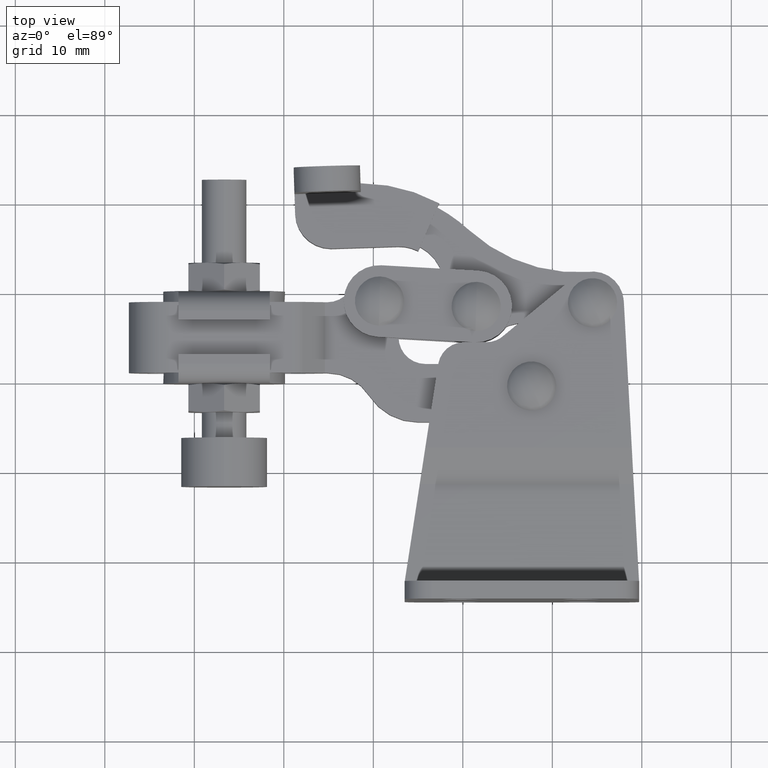
[diagram: clean part render]
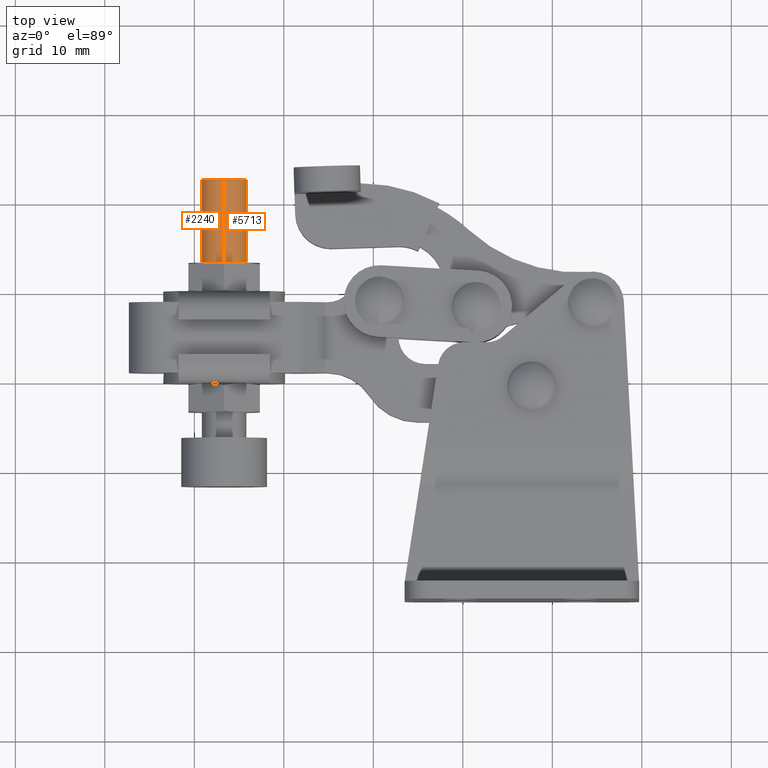
[diagram: same view with one multi-face feature highlighted, each face labeled with its STEP entity id]
A machine part, top view. The highlighted faces form ONE feature: a constant-radius fillet chain: 2 tangent blend faces with common blend radius 2.5 mm. The faces share edges in the B-rep.
Their STEP definitions:
[1] entity #2240 (Cylinder):
#62 = VERTEX_POINT ( 'NONE', #4346 ) ;
#158 = AXIS2_PLACEMENT_3D ( 'NONE', #915, #5517, #171 ) ;
#171 = DIRECTION ( 'NONE',  ( 0.0000000000000000000, 0.0000000000000000000, -1.000000000000000000 ) ) ;
#209 = ORIENTED_EDGE ( 'NONE', *, *, #9150, .F. ) ;
#277 = EDGE_CURVE ( 'NONE', #5825, #7076, #6253, .T. ) ;
#915 = CARTESIAN_POINT ( 'NONE',  ( -16.67053563229000400, 72.50000000000216000, 11.14979700761282500 ) ) ;
#1290 = FACE_OUTER_BOUND ( 'NONE', #3740, .T. ) ;
#1710 = DIRECTION ( 'NONE',  ( -0.0000000000000000000, -1.000000000000000000, -0.0000000000000000000 ) ) ;
#1738 = ORIENTED_EDGE ( 'NONE', *, *, #7907, .T. ) ;
#1775 = DIRECTION ( 'NONE',  ( 0.0000000000000000000, 0.0000000000000000000, -1.000000000000000000 ) ) ;
#2126 = CARTESIAN_POINT ( 'NONE',  ( -16.67053563229000400, 38.20000000000216300, 13.64979700761282500 ) ) ;
#2240 = ADVANCED_FACE ( 'NONE', ( #1290 ), #6440, .T. ) ;
#2334 = AXIS2_PLACEMENT_3D ( 'NONE', #8618, #1710, #1775 ) ;
#2422 = ORIENTED_EDGE ( 'NONE', *, *, #9029, .F. ) ;
#2842 = CARTESIAN_POINT ( 'NONE',  ( -16.67053563229000400, 72.50000000000216000, 8.649797007612823700 ) ) ;
#3370 = VERTEX_POINT ( 'NONE', #4895 ) ;
#3401 = CARTESIAN_POINT ( 'NONE',  ( -16.67053563229000400, 38.20000000000216300, 8.649797007612823700 ) ) ;
#3511 = DIRECTION ( 'NONE',  ( 0.0000000000000000000, -1.000000000000000000, -0.0000000000000000000 ) ) ;
#3701 = CIRCLE ( 'NONE', #4042, 2.500000000000000400 ) ;
#3740 = EDGE_LOOP ( 'NONE', ( #209, #7891, #1738, #2422 ) ) ;
#4042 = AXIS2_PLACEMENT_3D ( 'NONE', #8105, #3511, #8874 ) ;
#4346 = CARTESIAN_POINT ( 'NONE',  ( -16.67053563229000400, 63.20000000000219800, 13.64979700761282500 ) ) ;
#4895 = CARTESIAN_POINT ( 'NONE',  ( -16.67053563229000400, 63.20000000000219800, 8.649797007612823700 ) ) ;
#5517 = DIRECTION ( 'NONE',  ( -0.0000000000000000000, -1.000000000000000000, -0.0000000000000000000 ) ) ;
#5825 = VERTEX_POINT ( 'NONE', #7330 ) ;
#6253 = CIRCLE ( 'NONE', #158, 2.500000000000000400 ) ;
#6348 = LINE ( 'NONE', #2126, #8373 ) ;
#6440 = CYLINDRICAL_SURFACE ( 'NONE', #2334, 2.500000000000000400 ) ;
#6688 = DIRECTION ( 'NONE',  ( -0.0000000000000000000, -1.000000000000000000, -0.0000000000000000000 ) ) ;
#7076 = VERTEX_POINT ( 'NONE', #2842 ) ;
#7310 = VECTOR ( 'NONE', #8715, 1000.000000000000000 ) ;
#7330 = CARTESIAN_POINT ( 'NONE',  ( -16.67053563229000400, 72.50000000000216000, 13.64979700761282500 ) ) ;
#7891 = ORIENTED_EDGE ( 'NONE', *, *, #277, .T. ) ;
#7907 = EDGE_CURVE ( 'NONE', #7076, #3370, #9371, .T. ) ;
#8105 = CARTESIAN_POINT ( 'NONE',  ( -16.67053563229000400, 63.20000000000219800, 11.14979700761282500 ) ) ;
#8373 = VECTOR ( 'NONE', #6688, 1000.000000000000000 ) ;
#8618 = CARTESIAN_POINT ( 'NONE',  ( -16.67053563229000400, 38.20000000000216300, 11.14979700761282500 ) ) ;
#8715 = DIRECTION ( 'NONE',  ( -0.0000000000000000000, -1.000000000000000000, -0.0000000000000000000 ) ) ;
#8874 = DIRECTION ( 'NONE',  ( 0.0000000000000000000, 0.0000000000000000000, -1.000000000000000000 ) ) ;
#9029 = EDGE_CURVE ( 'NONE', #62, #3370, #3701, .T. ) ;
#9150 = EDGE_CURVE ( 'NONE', #5825, #62, #6348, .T. ) ;
#9371 = LINE ( 'NONE', #3401, #7310 ) ;
[2] entity #5713 (Cylinder):
#48 = DIRECTION ( 'NONE',  ( 0.0000000000000000000, -1.000000000000000000, -0.0000000000000000000 ) ) ;
#62 = VERTEX_POINT ( 'NONE', #4346 ) ;
#624 = CARTESIAN_POINT ( 'NONE',  ( -16.67053563229000400, 72.50000000000216000, 11.14979700761282500 ) ) ;
#1082 = CARTESIAN_POINT ( 'NONE',  ( -16.67053563229000400, 38.20000000000216300, 11.14979700761282500 ) ) ;
#1396 = DIRECTION ( 'NONE',  ( 0.0000000000000000000, 0.0000000000000000000, -1.000000000000000000 ) ) ;
#1471 = AXIS2_PLACEMENT_3D ( 'NONE', #1082, #2618, #5714 ) ;
#1572 = ORIENTED_EDGE ( 'NONE', *, *, #5331, .T. ) ;
#2126 = CARTESIAN_POINT ( 'NONE',  ( -16.67053563229000400, 38.20000000000216300, 13.64979700761282500 ) ) ;
#2618 = DIRECTION ( 'NONE',  ( -0.0000000000000000000, -1.000000000000000000, -0.0000000000000000000 ) ) ;
#2797 = CIRCLE ( 'NONE', #8708, 2.500000000000000400 ) ;
#2801 = EDGE_LOOP ( 'NONE', ( #1572, #3863, #5546, #5844 ) ) ;
#2842 = CARTESIAN_POINT ( 'NONE',  ( -16.67053563229000400, 72.50000000000216000, 8.649797007612823700 ) ) ;
#3370 = VERTEX_POINT ( 'NONE', #4895 ) ;
#3401 = CARTESIAN_POINT ( 'NONE',  ( -16.67053563229000400, 38.20000000000216300, 8.649797007612823700 ) ) ;
#3863 = ORIENTED_EDGE ( 'NONE', *, *, #9150, .T. ) ;
#4346 = CARTESIAN_POINT ( 'NONE',  ( -16.67053563229000400, 63.20000000000219800, 13.64979700761282500 ) ) ;
#4599 = CARTESIAN_POINT ( 'NONE',  ( -16.67053563229000400, 63.20000000000219800, 11.14979700761282500 ) ) ;
#4872 = AXIS2_PLACEMENT_3D ( 'NONE', #4599, #48, #5377 ) ;
#4895 = CARTESIAN_POINT ( 'NONE',  ( -16.67053563229000400, 63.20000000000219800, 8.649797007612823700 ) ) ;
#5331 = EDGE_CURVE ( 'NONE', #7076, #5825, #2797, .T. ) ;
#5377 = DIRECTION ( 'NONE',  ( 0.0000000000000000000, 0.0000000000000000000, -1.000000000000000000 ) ) ;
#5546 = ORIENTED_EDGE ( 'NONE', *, *, #7192, .F. ) ;
#5557 = CIRCLE ( 'NONE', #4872, 2.500000000000000400 ) ;
#5713 = ADVANCED_FACE ( 'NONE', ( #8334 ), #9422, .T. ) ;
#5714 = DIRECTION ( 'NONE',  ( 0.0000000000000000000, 0.0000000000000000000, -1.000000000000000000 ) ) ;
#5825 = VERTEX_POINT ( 'NONE', #7330 ) ;
#5844 = ORIENTED_EDGE ( 'NONE', *, *, #7907, .F. ) ;
#5977 = DIRECTION ( 'NONE',  ( -0.0000000000000000000, -1.000000000000000000, -0.0000000000000000000 ) ) ;
#6348 = LINE ( 'NONE', #2126, #8373 ) ;
#6688 = DIRECTION ( 'NONE',  ( -0.0000000000000000000, -1.000000000000000000, -0.0000000000000000000 ) ) ;
#7076 = VERTEX_POINT ( 'NONE', #2842 ) ;
#7192 = EDGE_CURVE ( 'NONE', #3370, #62, #5557, .T. ) ;
#7310 = VECTOR ( 'NONE', #8715, 1000.000000000000000 ) ;
#7330 = CARTESIAN_POINT ( 'NONE',  ( -16.67053563229000400, 72.50000000000216000, 13.64979700761282500 ) ) ;
#7907 = EDGE_CURVE ( 'NONE', #7076, #3370, #9371, .T. ) ;
#8334 = FACE_OUTER_BOUND ( 'NONE', #2801, .T. ) ;
#8373 = VECTOR ( 'NONE', #6688, 1000.000000000000000 ) ;
#8708 = AXIS2_PLACEMENT_3D ( 'NONE', #624, #5977, #1396 ) ;
#8715 = DIRECTION ( 'NONE',  ( -0.0000000000000000000, -1.000000000000000000, -0.0000000000000000000 ) ) ;
#9150 = EDGE_CURVE ( 'NONE', #5825, #62, #6348, .T. ) ;
#9371 = LINE ( 'NONE', #3401, #7310 ) ;
#9422 = CYLINDRICAL_SURFACE ( 'NONE', #1471, 2.500000000000000400 ) ;